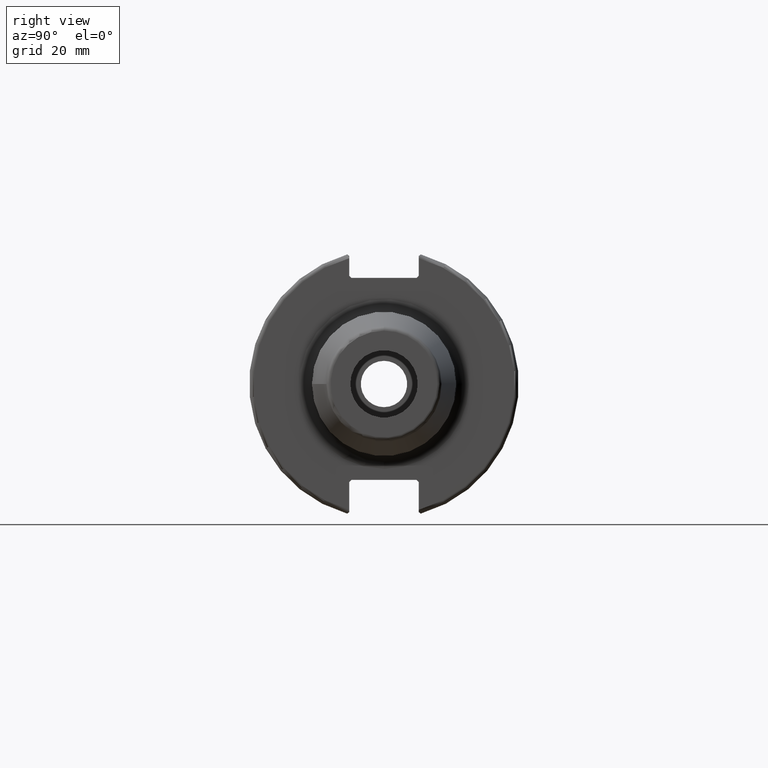
[diagram: clean part render]
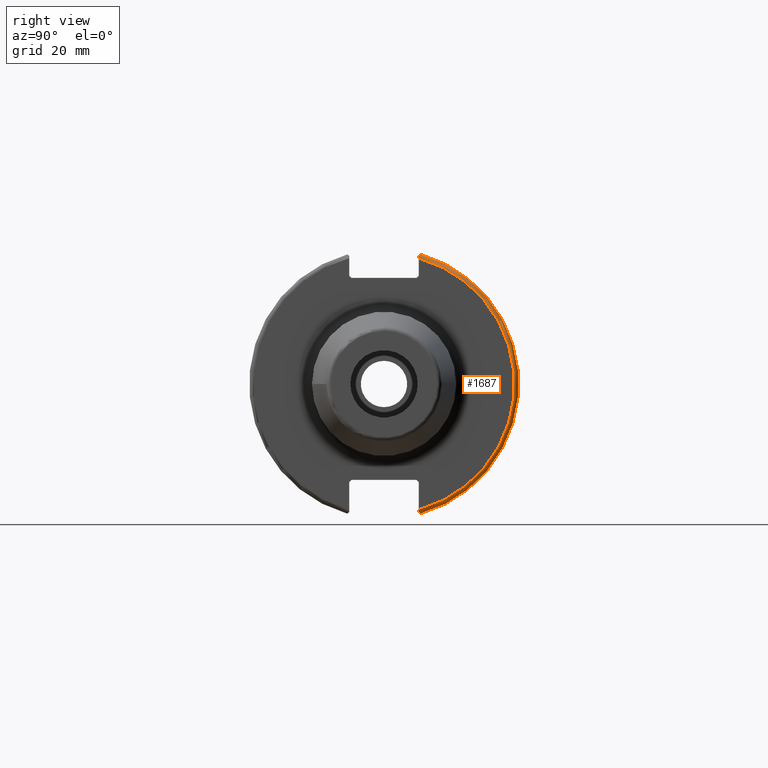
[diagram: same view with one face highlighted and labeled with its STEP entity id]
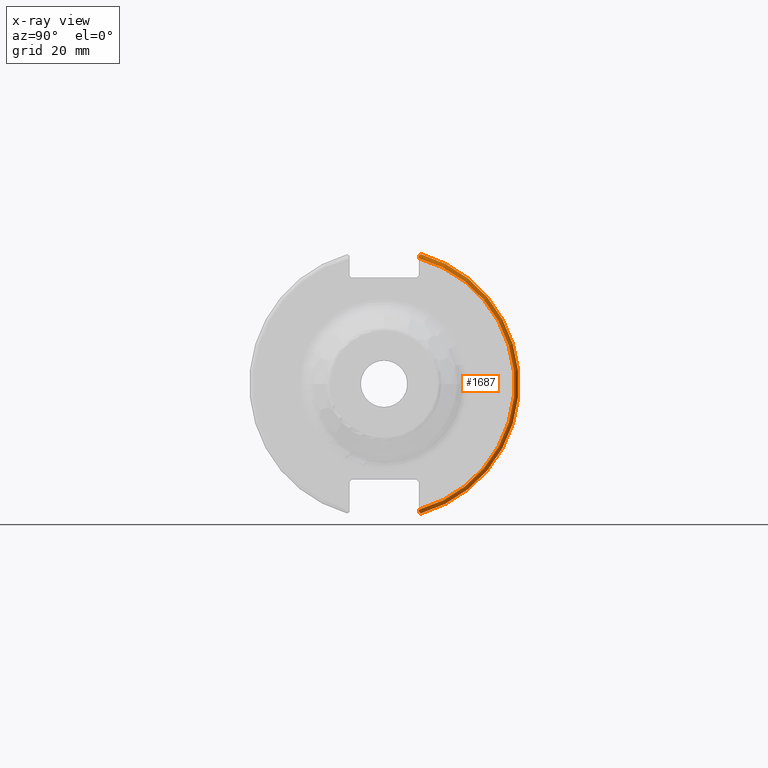
[diagram: x-ray of the same camera — body ghosted, the highlighted face saturated]
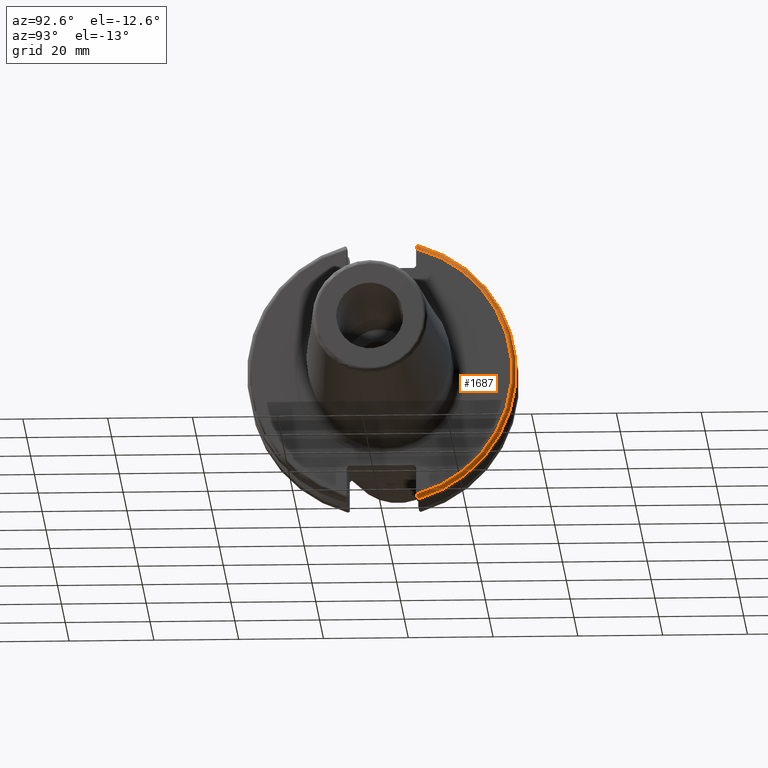
[diagram: same view with one face highlighted and labeled with its STEP entity id]
A machine part, right view. The second image highlights one B-rep face of the part: STEP entity #1687.
The next image is the same camera in x-ray: the body ghosted, the highlighted face saturated — about 0% of this face is hidden behind the body in this view.
A second angle (auxiliary view) of the same face is appended — the face is thin or edge-on in the first view.
In plain terms, the highlighted toroidal blend (fillet) surface has major radius 30.75 mm and minor (blend) radius 1 mm.
Its self-contained STEP definition (entity closure, byte-faithful):
#63=B_SPLINE_CURVE_WITH_KNOTS('',3,(#3029,#3030,#3031,#3032,#3033,#3034),
 .UNSPECIFIED.,.F.,.F.,(4,2,4),(0.0977210450333169,0.111963554372601,0.150804064902975),
 .UNSPECIFIED.);
#64=B_SPLINE_CURVE_WITH_KNOTS('',3,(#3036,#3037,#3038,#3039,#3040,#3041),
 .UNSPECIFIED.,.F.,.F.,(4,2,4),(0.452741154494497,0.491581665024871,0.505824174364157),
 .UNSPECIFIED.);
#65=B_SPLINE_CURVE_WITH_KNOTS('',3,(#3043,#3044,#3045,#3046,#3047,#3048,
#3049,#3050),.UNSPECIFIED.,.F.,.F.,(4,2,2,4),(-0.104302157163828,-0.0778717450894463,
-0.0364423539742873,0.),.UNSPECIFIED.);
#66=B_SPLINE_CURVE_WITH_KNOTS('',3,(#3053,#3054,#3055,#3056,#3057,#3058,
#3059,#3060),.UNSPECIFIED.,.F.,.F.,(4,2,2,4),(0.,0.0343524753874978,0.0729784742461449,
0.104180282751877),.UNSPECIFIED.);
#406=FACE_OUTER_BOUND('',#506,.T.);
#506=EDGE_LOOP('',(#1399,#1400,#1401,#1402,#1403,#1404));
#568=CIRCLE('',#1772,30.75);
#628=CIRCLE('',#1889,31.75);
#672=VERTEX_POINT('',#2518);
#673=VERTEX_POINT('',#2519);
#795=VERTEX_POINT('',#3028);
#796=VERTEX_POINT('',#3035);
#797=VERTEX_POINT('',#3042);
#798=VERTEX_POINT('',#3051);
#861=EDGE_CURVE('',#672,#673,#568,.T.);
#1017=EDGE_CURVE('',#795,#672,#63,.T.);
#1018=EDGE_CURVE('',#673,#796,#64,.T.);
#1019=EDGE_CURVE('',#796,#797,#65,.T.);
#1020=EDGE_CURVE('',#797,#798,#628,.T.);
#1021=EDGE_CURVE('',#798,#795,#66,.T.);
#1399=ORIENTED_EDGE('',*,*,#1017,.T.);
#1400=ORIENTED_EDGE('',*,*,#861,.T.);
#1401=ORIENTED_EDGE('',*,*,#1018,.T.);
#1402=ORIENTED_EDGE('',*,*,#1019,.T.);
#1403=ORIENTED_EDGE('',*,*,#1020,.T.);
#1404=ORIENTED_EDGE('',*,*,#1021,.T.);
#1638=TOROIDAL_SURFACE('',#1888,30.75,1.);
#1687=ADVANCED_FACE('',(#406),#1638,.T.);
#1772=AXIS2_PLACEMENT_3D('',#2520,#2009,#2010);
#1888=AXIS2_PLACEMENT_3D('',#3027,#2297,#2298);
#1889=AXIS2_PLACEMENT_3D('',#3052,#2299,#2300);
#2009=DIRECTION('center_axis',(-1.,0.,0.));
#2010=DIRECTION('ref_axis',(0.,1.,-6.12323399573677E-17));
#2297=DIRECTION('center_axis',(1.,0.,0.));
#2298=DIRECTION('ref_axis',(0.,0.,-1.));
#2299=DIRECTION('center_axis',(1.,0.,0.));
#2300=DIRECTION('ref_axis',(0.,1.,-6.12323399573677E-17));
#2518=CARTESIAN_POINT('',(19.05,8.19,29.6392712461019));
#2519=CARTESIAN_POINT('',(19.05,8.19,-29.6392712461019));
#2520=CARTESIAN_POINT('Origin',(19.05,0.,0.));
#3027=CARTESIAN_POINT('Origin',(18.05,0.,0.));
#3028=CARTESIAN_POINT('',(18.9058722749097,8.19,30.1755016258903));
#3029=CARTESIAN_POINT('Ctrl Pts',(18.9058722749097,8.19,30.1755016258903));
#3030=CARTESIAN_POINT('Ctrl Pts',(18.9318163728133,8.19,30.131014531546));
#3031=CARTESIAN_POINT('Ctrl Pts',(18.9539643471756,8.19,30.0852355256475));
#3032=CARTESIAN_POINT('Ctrl Pts',(19.020485567083,8.19,29.9212724384851));
#3033=CARTESIAN_POINT('Ctrl Pts',(19.05,8.19,29.7687396145364));
#3034=CARTESIAN_POINT('Ctrl Pts',(19.05,8.19,29.6392712461019));
#3035=CARTESIAN_POINT('',(18.9058722749097,8.19,-30.1755016258903));
#3036=CARTESIAN_POINT('Ctrl Pts',(19.05,8.19,-29.6392712461019));
#3037=CARTESIAN_POINT('Ctrl Pts',(19.05,8.19,-29.7687396145364));
#3038=CARTESIAN_POINT('Ctrl Pts',(19.0204855670831,8.19,-29.9212724384851));
#3039=CARTESIAN_POINT('Ctrl Pts',(18.9539643471756,8.19,-30.0852355256475));
#3040=CARTESIAN_POINT('Ctrl Pts',(18.9318163728133,8.19,-30.131014531546));
#3041=CARTESIAN_POINT('Ctrl Pts',(18.9058722749097,8.19,-30.1755016258903));
#3042=CARTESIAN_POINT('',(18.05,8.67204822802685,-30.5427254764662));
#3043=CARTESIAN_POINT('Ctrl Pts',(18.9058722749097,8.19,-30.1755016258903));
#3044=CARTESIAN_POINT('Ctrl Pts',(18.8644673620074,8.25871605728282,-30.2278494485451));
#3045=CARTESIAN_POINT('Ctrl Pts',(18.8119751533981,8.32529543089522,-30.2785695477496));
#3046=CARTESIAN_POINT('Ctrl Pts',(18.6711011886212,8.46607530335799,-30.3858155116254));
#3047=CARTESIAN_POINT('Ctrl Pts',(18.545044361706,8.551646780666,-30.4510037761381));
#3048=CARTESIAN_POINT('Ctrl Pts',(18.3129472218859,8.64410239894262,-30.5214363722497));
#3049=CARTESIAN_POINT('Ctrl Pts',(18.1714745132476,8.67204822802685,-30.5427254764662));
#3050=CARTESIAN_POINT('Ctrl Pts',(18.05,8.67204822802685,-30.5427254764662));
#3051=CARTESIAN_POINT('',(18.05,8.67204822802685,30.5427254764662));
#3052=CARTESIAN_POINT('Origin',(18.05,0.,0.));
#3053=CARTESIAN_POINT('Ctrl Pts',(18.05,8.67204822802685,30.5427254764662));
#3054=CARTESIAN_POINT('Ctrl Pts',(18.1645082512917,8.67204822802685,30.5427254764662));
#3055=CARTESIAN_POINT('Ctrl Pts',(18.2983170433775,8.6471881193939,30.5237870709558));
#3056=CARTESIAN_POINT('Ctrl Pts',(18.5184414294771,8.56482138642532,30.4610401774263));
#3057=CARTESIAN_POINT('Ctrl Pts',(18.6396724190507,8.48862804755883,30.4029961692546));
#3058=CARTESIAN_POINT('Ctrl Pts',(18.7926702662319,8.34909446036477,30.2966996242308));
#3059=CARTESIAN_POINT('Ctrl Pts',(18.8574463042989,8.27036828330781,30.2367261024977));
#3060=CARTESIAN_POINT('Ctrl Pts',(18.9058722749097,8.19,30.1755016258903));